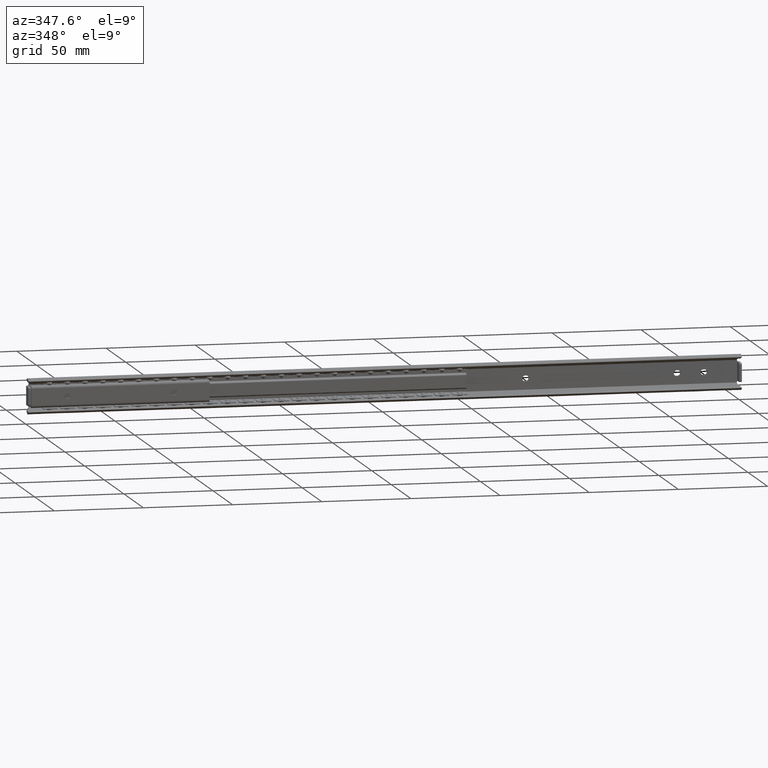
[diagram: clean part render]
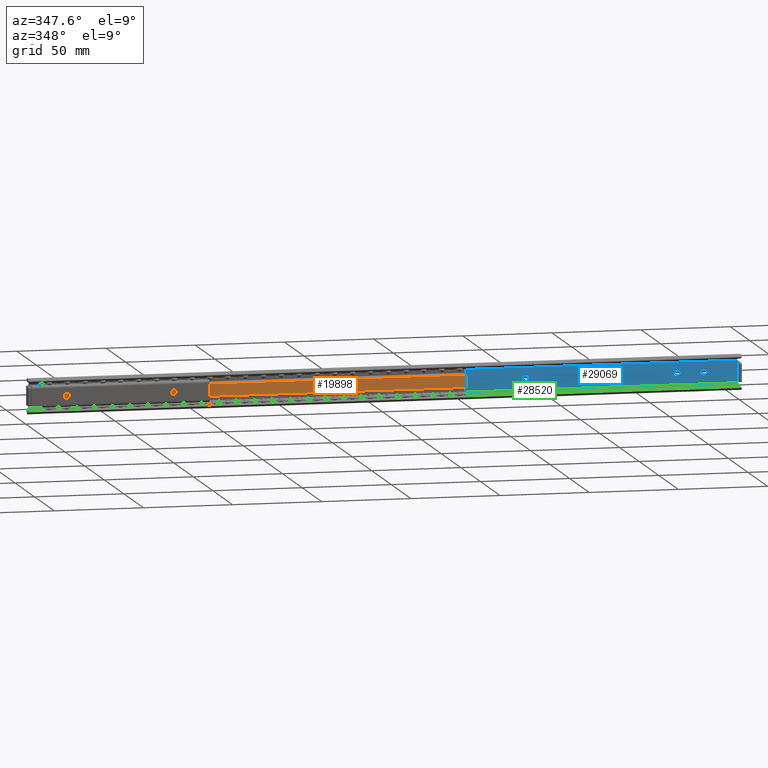
[diagram: same view with three faces highlighted in distinct colors, each labeled with its STEP entity id]
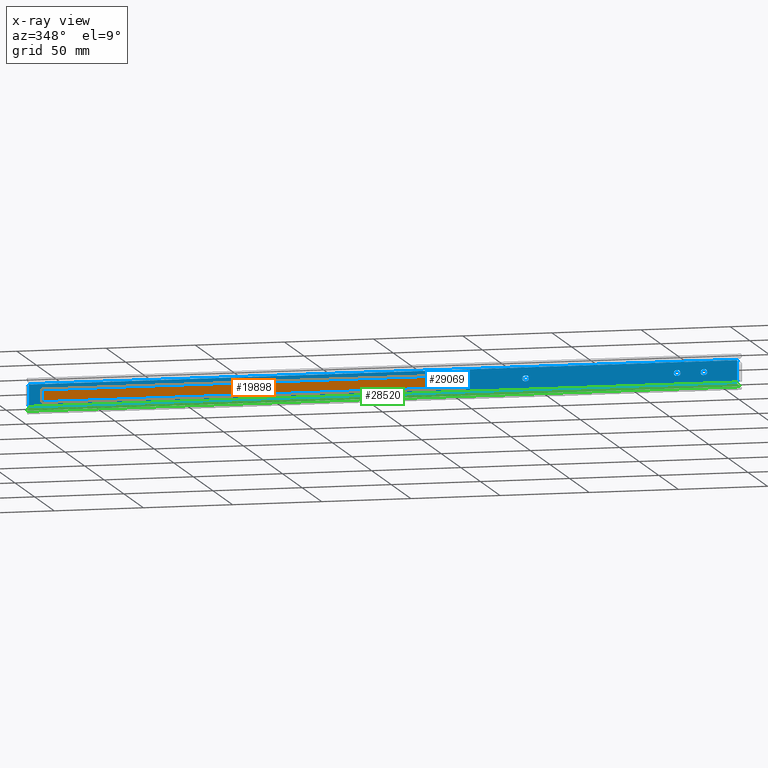
[diagram: x-ray of the same camera — body ghosted, the three highlighted faces saturated]
A machine part, auxiliary view with three faces highlighted in distinct colors.
The next image is the same camera in x-ray (body ghosted, the three faces saturated) — at least one of them is partly hidden behind the body in this view.
Their STEP definitions:

[orange] entity #19898 — the highlighted face is a freeform B-spline surface patch.
#19422=CARTESIAN_POINT('',(8.200000000000001,-4.500000000000000,-3.373923690811400));
#19423=VERTEX_POINT('',#19422);
#19437=CARTESIAN_POINT('',(8.200000000000001,-4.500000000000000,3.373923690811400));
#19438=VERTEX_POINT('',#19437);
#19439=CARTESIAN_POINT('',(8.200000000000001,-4.500000000000000,-3.373923690811400));
#19440=CARTESIAN_POINT('',(8.200000000000001,-4.500000000000000,3.373923690811400));
#19441=QUASI_UNIFORM_CURVE('',1,(#19439,#19440),.UNSPECIFIED.,.F.,.U.);
#19442=EDGE_CURVE('',#19423,#19438,#19441,.T.);
#19502=CARTESIAN_POINT('',(246.199999999999990,-4.500000000000000,3.373923690811400));
#19503=VERTEX_POINT('',#19502);
#19517=CARTESIAN_POINT('',(246.199999999999990,-4.500000000000000,-3.373923690811400));
#19518=VERTEX_POINT('',#19517);
#19519=CARTESIAN_POINT('',(246.199999999999990,-4.500000000000000,-3.373923690811400));
#19520=CARTESIAN_POINT('',(246.199999999999990,-4.500000000000000,3.373923690811400));
#19521=QUASI_UNIFORM_CURVE('',1,(#19519,#19520),.UNSPECIFIED.,.F.,.U.);
#19522=EDGE_CURVE('',#19518,#19503,#19521,.T.);
#19873=CARTESIAN_POINT('',(246.199999999999990,-4.500000000000000,3.373923690811400));
#19874=CARTESIAN_POINT('',(8.200000000000001,-4.500000000000000,3.373923690811400));
#19875=QUASI_UNIFORM_CURVE('',1,(#19873,#19874),.UNSPECIFIED.,.F.,.U.);
#19876=EDGE_CURVE('',#19503,#19438,#19875,.T.);
#19883=CARTESIAN_POINT('',(-3.688098688406660,-4.500000000000000,3.710978781132748));
#19884=CARTESIAN_POINT('',(-3.688098688406660,-4.500000000000000,-3.710978841463204));
#19885=CARTESIAN_POINT('',(258.088088048977620,-4.500000000000000,3.710978781132748));
#19886=CARTESIAN_POINT('',(258.088088048977620,-4.500000000000000,-3.710978841463205));
#19887=B_SPLINE_SURFACE_WITH_KNOTS('',1,1,((#19883,#19885),(#19884,#19886)),.UNSPECIFIED.,.F.,.F.,.U.,(2,2),(2,2),(0.0,7.421957622595952),(0.0,261.776186737384310),.UNSPECIFIED.);
#19888=ORIENTED_EDGE('',*,*,#19442,.F.);
#19889=CARTESIAN_POINT('',(246.199999999999990,-4.500000000000000,-3.373923690811400));
#19890=CARTESIAN_POINT('',(8.200000000000001,-4.500000000000000,-3.373923690811400));
#19891=QUASI_UNIFORM_CURVE('',1,(#19889,#19890),.UNSPECIFIED.,.F.,.U.);
#19892=EDGE_CURVE('',#19518,#19423,#19891,.T.);
#19893=ORIENTED_EDGE('',*,*,#19892,.F.);
#19894=ORIENTED_EDGE('',*,*,#19522,.T.);
#19895=ORIENTED_EDGE('',*,*,#19876,.T.);
#19896=EDGE_LOOP('',(#19888,#19893,#19894,#19895));
#19897=FACE_OUTER_BOUND('',#19896,.T.);
#19898=ADVANCED_FACE('',(#19897),#19887,.T.);

[blue] entity #29069 — the highlighted face is a freeform B-spline surface patch.
#25607=CARTESIAN_POINT('',(21.588815242142921,-1.399999999999956,-0.188854775778495));
#25608=VERTEX_POINT('',#25607);
#25614=CARTESIAN_POINT('',(20.0,-1.399999999999956,1.600000000000000));
#25615=VERTEX_POINT('',#25614);
#25616=CARTESIAN_POINT('',(21.588815242142918,-1.399999999999956,-0.188854775778495));
#25617=CARTESIAN_POINT('',(21.600000000000001,-1.399999999999956,-0.094758591774202));
#25618=CARTESIAN_POINT('',(21.600000000000001,-1.399999999999956,0.0));
#25619=CARTESIAN_POINT('',(21.600000000000005,-1.399999999999956,1.600000000000000));
#25620=CARTESIAN_POINT('',(20.0,-1.399999999999956,1.600000000000000));
#25628=(BOUNDED_CURVE()B_SPLINE_CURVE(2,(#25616,#25617,#25618,#25619,#25620),.UNSPECIFIED.,.F.,.U.)B_SPLINE_CURVE_WITH_KNOTS((3,2,3),(0.229562473445933,0.250000000000000,0.500000000000000),.UNSPECIFIED.)CURVE()GEOMETRIC_REPRESENTATION_ITEM()RATIONAL_B_SPLINE_CURVE((0.956026754051248,0.976055948251975,1.0,0.707106781186548,1.0))REPRESENTATION_ITEM(''));
#25629=EDGE_CURVE('',#25608,#25615,#25628,.T.);
#25631=CARTESIAN_POINT('',(18.402984322571509,-1.399999999999956,0.097677664016044));
#25632=VERTEX_POINT('',#25631);
#25633=CARTESIAN_POINT('',(20.0,-1.399999999999956,1.600000000000000));
#25634=CARTESIAN_POINT('',(18.494870294386637,-1.399999999999955,1.600000000000001));
#25635=CARTESIAN_POINT('',(18.402984322571516,-1.399999999999956,0.097677664016044));
#25643=(BOUNDED_CURVE()B_SPLINE_CURVE(2,(#25633,#25634,#25635),.UNSPECIFIED.,.F.,.U.)B_SPLINE_CURVE_WITH_KNOTS((3,3),(0.500000000000000,0.739332962077683),.UNSPECIFIED.)CURVE()GEOMETRIC_REPRESENTATION_ITEM()RATIONAL_B_SPLINE_CURVE((1.0,0.719603993475638,0.976072041321107))REPRESENTATION_ITEM(''));
#25644=EDGE_CURVE('',#25615,#25632,#25643,.T.);
#25718=CARTESIAN_POINT('',(20.0,-1.399999999999956,-1.600000000000000));
#25719=VERTEX_POINT('',#25718);
#25720=CARTESIAN_POINT('',(18.402984322571513,-1.399999999999956,0.097677664016044));
#25721=CARTESIAN_POINT('',(18.399999999999999,-1.399999999999956,0.048884422040147));
#25722=CARTESIAN_POINT('',(18.399999999999999,-1.399999999999956,0.0));
#25723=CARTESIAN_POINT('',(18.399999999999991,-1.399999999999956,-1.600000000000000));
#25724=CARTESIAN_POINT('',(20.0,-1.399999999999956,-1.600000000000000));
#25732=(BOUNDED_CURVE()B_SPLINE_CURVE(2,(#25720,#25721,#25722,#25723,#25724),.UNSPECIFIED.,.F.,.U.)B_SPLINE_CURVE_WITH_KNOTS((3,2,3),(0.739332962077684,0.750000000000000,1.0),.UNSPECIFIED.)CURVE()GEOMETRIC_REPRESENTATION_ITEM()RATIONAL_B_SPLINE_CURVE((0.976072041321108,0.987502787710910,1.0,0.707106781186548,1.0))REPRESENTATION_ITEM(''));
#25733=EDGE_CURVE('',#25632,#25719,#25732,.T.);
#25735=CARTESIAN_POINT('',(20.0,-1.399999999999956,-1.600000000000000));
#25736=CARTESIAN_POINT('',(21.421079240931888,-1.399999999999956,-1.599999999999999));
#25737=CARTESIAN_POINT('',(21.588815242142918,-1.399999999999956,-0.188854775778495));
#25745=(BOUNDED_CURVE()B_SPLINE_CURVE(2,(#25735,#25736,#25737),.UNSPECIFIED.,.F.,.U.)B_SPLINE_CURVE_WITH_KNOTS((3,3),(0.0,0.229562473445933),.UNSPECIFIED.)CURVE()GEOMETRIC_REPRESENTATION_ITEM()RATIONAL_B_SPLINE_CURVE((1.0,0.731050832934572,0.956026754051248))REPRESENTATION_ITEM(''));
#25746=EDGE_CURVE('',#25719,#25608,#25745,.T.);
#25770=CARTESIAN_POINT('',(34.700000000000003,-1.399999999999956,1.600000000000000));
#25771=VERTEX_POINT('',#25770);
#25772=CARTESIAN_POINT('',(34.700000000000003,-1.399999999999956,-1.600000000000080));
#25773=VERTEX_POINT('',#25772);
#25774=CARTESIAN_POINT('',(34.700000000000003,-1.399999999999956,1.600000000000000));
#25775=CARTESIAN_POINT('',(33.100000000000009,-1.399999999999956,1.600000000000000));
#25776=CARTESIAN_POINT('',(33.100000000000001,-1.399999999999956,0.0));
#25777=CARTESIAN_POINT('',(33.100000000000009,-1.399999999999956,-1.600000000000000));
#25778=CARTESIAN_POINT('',(34.700000000000003,-1.399999999999956,-1.600000000000080));
#25786=(BOUNDED_CURVE()B_SPLINE_CURVE(2,(#25774,#25775,#25776,#25777,#25778),.UNSPECIFIED.,.F.,.U.)B_SPLINE_CURVE_WITH_KNOTS((3,2,3),(0.0,0.500000000000000,1.0),.UNSPECIFIED.)CURVE()GEOMETRIC_REPRESENTATION_ITEM()RATIONAL_B_SPLINE_CURVE((1.0,0.707106781186548,1.0,0.707106781186548,1.0))REPRESENTATION_ITEM(''));
#25787=EDGE_CURVE('',#25771,#25773,#25786,.T.);
#25828=CARTESIAN_POINT('',(35.299999999999997,-1.399999999999956,-1.600000000000000));
#25829=VERTEX_POINT('',#25828);
#25841=CARTESIAN_POINT('',(35.299999999999997,-1.399999999999956,-1.600000000000000));
#25842=CARTESIAN_POINT('',(34.700000000000003,-1.399999999999956,-1.600000000000080));
#25843=QUASI_UNIFORM_CURVE('',1,(#25841,#25842),.UNSPECIFIED.,.F.,.U.);
#25844=EDGE_CURVE('',#25829,#25773,#25843,.T.);
#25867=CARTESIAN_POINT('',(35.299999999999997,-1.399999999999956,1.600000000000000));
#25868=VERTEX_POINT('',#25867);
#25869=CARTESIAN_POINT('',(35.299999999999997,-1.399999999999956,-1.600000000000000));
#25870=CARTESIAN_POINT('',(36.900000000000006,-1.399999999999956,-1.600000000000000));
#25871=CARTESIAN_POINT('',(36.899999999999999,-1.399999999999956,0.0));
#25872=CARTESIAN_POINT('',(36.900000000000006,-1.399999999999956,1.600000000000000));
#25873=CARTESIAN_POINT('',(35.299999999999997,-1.399999999999956,1.600000000000000));
#25881=(BOUNDED_CURVE()B_SPLINE_CURVE(2,(#25869,#25870,#25871,#25872,#25873),.UNSPECIFIED.,.F.,.U.)B_SPLINE_CURVE_WITH_KNOTS((3,2,3),(0.0,0.500000000000000,1.0),.UNSPECIFIED.)CURVE()GEOMETRIC_REPRESENTATION_ITEM()RATIONAL_B_SPLINE_CURVE((1.0,0.707106781186548,1.0,0.707106781186548,1.0))REPRESENTATION_ITEM(''));
#25882=EDGE_CURVE('',#25829,#25868,#25881,.T.);
#25922=CARTESIAN_POINT('',(34.700000000000003,-1.399999999999956,1.600000000000000));
#25923=CARTESIAN_POINT('',(35.299999999999997,-1.399999999999956,1.600000000000000));
#25924=QUASI_UNIFORM_CURVE('',1,(#25922,#25923),.UNSPECIFIED.,.F.,.U.);
#25925=EDGE_CURVE('',#25771,#25868,#25924,.T.);
#25935=CARTESIAN_POINT('',(119.700000000000000,-1.399999999999920,-1.600000000000080));
#25936=VERTEX_POINT('',#25935);
#25937=CARTESIAN_POINT('',(120.300000000000000,-1.399999999999956,-1.600000000000080));
#25938=VERTEX_POINT('',#25937);
#25939=CARTESIAN_POINT('',(119.700000000000000,-1.399999999999920,-1.600000000000080));
#25940=CARTESIAN_POINT('',(120.300000000000000,-1.399999999999956,-1.600000000000080));
#25941=QUASI_UNIFORM_CURVE('',1,(#25939,#25940),.UNSPECIFIED.,.F.,.U.);
#25942=EDGE_CURVE('',#25936,#25938,#25941,.T.);
#25984=CARTESIAN_POINT('',(119.700000000000000,-1.399999999999956,1.600000000000025));
#25985=VERTEX_POINT('',#25984);
#25986=CARTESIAN_POINT('',(119.700000000000000,-1.399999999999956,1.600000000000000));
#25987=CARTESIAN_POINT('',(118.099999999999980,-1.399999999999956,1.600000000000000));
#25988=CARTESIAN_POINT('',(118.099999999999990,-1.399999999999956,0.0));
#25989=CARTESIAN_POINT('',(118.099999999999980,-1.399999999999956,-1.600000000000000));
#25990=CARTESIAN_POINT('',(119.700000000000000,-1.399999999999956,-1.600000000000000));
#25998=(BOUNDED_CURVE()B_SPLINE_CURVE(2,(#25986,#25987,#25988,#25989,#25990),.UNSPECIFIED.,.F.,.U.)B_SPLINE_CURVE_WITH_KNOTS((3,2,3),(0.0,0.500000000000000,1.0),.UNSPECIFIED.)CURVE()GEOMETRIC_REPRESENTATION_ITEM()RATIONAL_B_SPLINE_CURVE((1.0,0.707106781186548,1.0,0.707106781186548,1.0))REPRESENTATION_ITEM(''));
#25999=EDGE_CURVE('',#25985,#25936,#25998,.T.);
#26032=CARTESIAN_POINT('',(120.300000000000000,-1.399999999999956,1.600000000000025));
#26033=VERTEX_POINT('',#26032);
#26034=CARTESIAN_POINT('',(120.300000000000000,-1.399999999999956,1.600000000000025));
#26035=CARTESIAN_POINT('',(119.700000000000000,-1.399999999999956,1.600000000000025));
#26036=QUASI_UNIFORM_CURVE('',1,(#26034,#26035),.UNSPECIFIED.,.F.,.U.);
#26037=EDGE_CURVE('',#26033,#25985,#26036,.T.);
#26073=CARTESIAN_POINT('',(120.300000000000000,-1.399999999999956,-1.600000000000000));
#26074=CARTESIAN_POINT('',(121.900000000000010,-1.399999999999956,-1.600000000000000));
#26075=CARTESIAN_POINT('',(121.900000000000010,-1.399999999999956,0.0));
#26076=CARTESIAN_POINT('',(121.900000000000010,-1.399999999999956,1.600000000000000));
#26077=CARTESIAN_POINT('',(120.300000000000000,-1.399999999999956,1.600000000000000));
#26085=(BOUNDED_CURVE()B_SPLINE_CURVE(2,(#26073,#26074,#26075,#26076,#26077),.UNSPECIFIED.,.F.,.U.)B_SPLINE_CURVE_WITH_KNOTS((3,2,3),(0.0,0.500000000000000,1.0),.UNSPECIFIED.)CURVE()GEOMETRIC_REPRESENTATION_ITEM()RATIONAL_B_SPLINE_CURVE((1.0,0.707106781186548,1.0,0.707106781186548,1.0))REPRESENTATION_ITEM(''));
#26086=EDGE_CURVE('',#25938,#26033,#26085,.T.);
#26113=CARTESIAN_POINT('',(379.699999999999990,-1.399999999999920,-1.600000000000000));
#26114=VERTEX_POINT('',#26113);
#26115=CARTESIAN_POINT('',(380.300000000000010,-1.399999999999956,-1.600000000000000));
#26116=VERTEX_POINT('',#26115);
#26117=CARTESIAN_POINT('',(379.699999999999990,-1.399999999999920,-1.600000000000000));
#26118=CARTESIAN_POINT('',(380.300000000000010,-1.399999999999956,-1.600000000000000));
#26119=QUASI_UNIFORM_CURVE('',1,(#26117,#26118),.UNSPECIFIED.,.F.,.U.);
#26120=EDGE_CURVE('',#26114,#26116,#26119,.T.);
#26162=CARTESIAN_POINT('',(379.699999999999990,-1.399999999999956,1.599999999999795));
#26163=VERTEX_POINT('',#26162);
#26164=CARTESIAN_POINT('',(379.699999999999990,-1.399999999999956,1.600000000000025));
#26165=CARTESIAN_POINT('',(378.100000000000020,-1.399999999999956,1.600000000000026));
#26166=CARTESIAN_POINT('',(378.099999999999910,-1.399999999999956,0.0));
#26167=CARTESIAN_POINT('',(378.100000000000020,-1.399999999999956,-1.600000000000026));
#26168=CARTESIAN_POINT('',(379.699999999999990,-1.399999999999956,-1.600000000000025));
#26176=(BOUNDED_CURVE()B_SPLINE_CURVE(2,(#26164,#26165,#26166,#26167,#26168),.UNSPECIFIED.,.F.,.U.)B_SPLINE_CURVE_WITH_KNOTS((3,2,3),(0.0,0.500000000000000,1.0),.UNSPECIFIED.)CURVE()GEOMETRIC_REPRESENTATION_ITEM()RATIONAL_B_SPLINE_CURVE((1.0,0.707106781186547,1.0,0.707106781186547,1.0))REPRESENTATION_ITEM(''));
#26177=EDGE_CURVE('',#26163,#26114,#26176,.T.);
#26210=CARTESIAN_POINT('',(380.300000000000010,-1.399999999999956,1.599999999999795));
#26211=VERTEX_POINT('',#26210);
#26212=CARTESIAN_POINT('',(380.300000000000010,-1.399999999999956,1.599999999999795));
#26213=CARTESIAN_POINT('',(379.699999999999990,-1.399999999999956,1.599999999999795));
#26214=QUASI_UNIFORM_CURVE('',1,(#26212,#26213),.UNSPECIFIED.,.F.,.U.);
#26215=EDGE_CURVE('',#26211,#26163,#26214,.T.);
#26251=CARTESIAN_POINT('',(380.300000000000010,-1.399999999999956,-1.600000000000025));
#26252=CARTESIAN_POINT('',(381.900000000000150,-1.399999999999956,-1.600000000000026));
#26253=CARTESIAN_POINT('',(381.900000000000090,-1.399999999999956,0.0));
#26254=CARTESIAN_POINT('',(381.900000000000150,-1.399999999999956,1.600000000000026));
#26255=CARTESIAN_POINT('',(380.300000000000010,-1.399999999999956,1.600000000000025));
#26263=(BOUNDED_CURVE()B_SPLINE_CURVE(2,(#26251,#26252,#26253,#26254,#26255),.UNSPECIFIED.,.F.,.U.)B_SPLINE_CURVE_WITH_KNOTS((3,2,3),(0.0,0.500000000000000,1.0),.UNSPECIFIED.)CURVE()GEOMETRIC_REPRESENTATION_ITEM()RATIONAL_B_SPLINE_CURVE((1.0,0.707106781186547,1.0,0.707106781186547,1.0))REPRESENTATION_ITEM(''));
#26264=EDGE_CURVE('',#26116,#26211,#26263,.T.);
#26291=CARTESIAN_POINT('',(364.700000000000100,-1.399999999999920,-1.600000000000000));
#26292=VERTEX_POINT('',#26291);
#26293=CARTESIAN_POINT('',(365.300000000000010,-1.399999999999956,-1.600000000000000));
#26294=VERTEX_POINT('',#26293);
#26295=CARTESIAN_POINT('',(364.700000000000100,-1.399999999999920,-1.600000000000000));
#26296=CARTESIAN_POINT('',(365.300000000000010,-1.399999999999956,-1.600000000000000));
#26297=QUASI_UNIFORM_CURVE('',1,(#26295,#26296),.UNSPECIFIED.,.F.,.U.);
#26298=EDGE_CURVE('',#26292,#26294,#26297,.T.);
#26340=CARTESIAN_POINT('',(364.700000000000100,-1.399999999999956,1.599999999999795));
#26341=VERTEX_POINT('',#26340);
#26342=CARTESIAN_POINT('',(364.700000000000100,-1.399999999999956,1.600000000000025));
#26343=CARTESIAN_POINT('',(363.100000000000080,-1.399999999999956,1.600000000000026));
#26344=CARTESIAN_POINT('',(363.100000000000020,-1.399999999999956,0.0));
#26345=CARTESIAN_POINT('',(363.100000000000080,-1.399999999999956,-1.600000000000026));
#26346=CARTESIAN_POINT('',(364.700000000000100,-1.399999999999956,-1.600000000000025));
#26354=(BOUNDED_CURVE()B_SPLINE_CURVE(2,(#26342,#26343,#26344,#26345,#26346),.UNSPECIFIED.,.F.,.U.)B_SPLINE_CURVE_WITH_KNOTS((3,2,3),(0.0,0.500000000000000,1.0),.UNSPECIFIED.)CURVE()GEOMETRIC_REPRESENTATION_ITEM()RATIONAL_B_SPLINE_CURVE((1.0,0.707106781186547,1.0,0.707106781186547,1.0))REPRESENTATION_ITEM(''));
#26355=EDGE_CURVE('',#26341,#26292,#26354,.T.);
#26388=CARTESIAN_POINT('',(365.300000000000010,-1.399999999999956,1.599999999999795));
#26389=VERTEX_POINT('',#26388);
#26390=CARTESIAN_POINT('',(365.300000000000010,-1.399999999999956,1.599999999999795));
#26391=CARTESIAN_POINT('',(364.700000000000100,-1.399999999999956,1.599999999999795));
#26392=QUASI_UNIFORM_CURVE('',1,(#26390,#26391),.UNSPECIFIED.,.F.,.U.);
#26393=EDGE_CURVE('',#26389,#26341,#26392,.T.);
#26429=CARTESIAN_POINT('',(365.300000000000010,-1.399999999999956,-1.600000000000025));
#26430=CARTESIAN_POINT('',(366.900000000000030,-1.399999999999956,-1.600000000000026));
#26431=CARTESIAN_POINT('',(366.899999999999980,-1.399999999999956,0.0));
#26432=CARTESIAN_POINT('',(366.900000000000030,-1.399999999999956,1.600000000000026));
#26433=CARTESIAN_POINT('',(365.300000000000010,-1.399999999999956,1.600000000000025));
#26441=(BOUNDED_CURVE()B_SPLINE_CURVE(2,(#26429,#26430,#26431,#26432,#26433),.UNSPECIFIED.,.F.,.U.)B_SPLINE_CURVE_WITH_KNOTS((3,2,3),(0.0,0.500000000000000,1.0),.UNSPECIFIED.)CURVE()GEOMETRIC_REPRESENTATION_ITEM()RATIONAL_B_SPLINE_CURVE((1.0,0.707106781186547,1.0,0.707106781186547,1.0))REPRESENTATION_ITEM(''));
#26442=EDGE_CURVE('',#26294,#26389,#26441,.T.);
#26469=CARTESIAN_POINT('',(279.699999999999990,-1.399999999999920,-1.600000000000000));
#26470=VERTEX_POINT('',#26469);
#26471=CARTESIAN_POINT('',(280.300000000000010,-1.399999999999956,-1.600000000000000));
#26472=VERTEX_POINT('',#26471);
#26473=CARTESIAN_POINT('',(279.699999999999990,-1.399999999999920,-1.600000000000000));
#26474=CARTESIAN_POINT('',(280.300000000000010,-1.399999999999956,-1.600000000000000));
#26475=QUASI_UNIFORM_CURVE('',1,(#26473,#26474),.UNSPECIFIED.,.F.,.U.);
#26476=EDGE_CURVE('',#26470,#26472,#26475,.T.);
#26518=CARTESIAN_POINT('',(279.699999999999990,-1.399999999999956,1.599999999999795));
#26519=VERTEX_POINT('',#26518);
#26520=CARTESIAN_POINT('',(279.699999999999990,-1.399999999999956,1.600000000000025));
#26521=CARTESIAN_POINT('',(278.099999999999910,-1.399999999999956,1.600000000000026));
#26522=CARTESIAN_POINT('',(278.100000000000020,-1.399999999999956,0.0));
#26523=CARTESIAN_POINT('',(278.099999999999910,-1.399999999999956,-1.600000000000026));
#26524=CARTESIAN_POINT('',(279.699999999999990,-1.399999999999956,-1.600000000000025));
#26532=(BOUNDED_CURVE()B_SPLINE_CURVE(2,(#26520,#26521,#26522,#26523,#26524),.UNSPECIFIED.,.F.,.U.)B_SPLINE_CURVE_WITH_KNOTS((3,2,3),(0.0,0.500000000000000,1.0),.UNSPECIFIED.)CURVE()GEOMETRIC_REPRESENTATION_ITEM()RATIONAL_B_SPLINE_CURVE((1.0,0.707106781186547,1.0,0.707106781186547,1.0))REPRESENTATION_ITEM(''));
#26533=EDGE_CURVE('',#26519,#26470,#26532,.T.);
#26566=CARTESIAN_POINT('',(280.300000000000010,-1.399999999999956,1.599999999999795));
#26567=VERTEX_POINT('',#26566);
#26568=CARTESIAN_POINT('',(280.300000000000010,-1.399999999999956,1.599999999999795));
#26569=CARTESIAN_POINT('',(279.699999999999990,-1.399999999999956,1.599999999999795));
#26570=QUASI_UNIFORM_CURVE('',1,(#26568,#26569),.UNSPECIFIED.,.F.,.U.);
#26571=EDGE_CURVE('',#26567,#26519,#26570,.T.);
#26607=CARTESIAN_POINT('',(280.300000000000010,-1.399999999999956,-1.600000000000025));
#26608=CARTESIAN_POINT('',(281.900000000000090,-1.399999999999956,-1.600000000000026));
#26609=CARTESIAN_POINT('',(281.899999999999980,-1.399999999999956,0.0));
#26610=CARTESIAN_POINT('',(281.900000000000090,-1.399999999999956,1.600000000000026));
#26611=CARTESIAN_POINT('',(280.300000000000010,-1.399999999999956,1.600000000000025));
#26619=(BOUNDED_CURVE()B_SPLINE_CURVE(2,(#26607,#26608,#26609,#26610,#26611),.UNSPECIFIED.,.F.,.U.)B_SPLINE_CURVE_WITH_KNOTS((3,2,3),(0.0,0.500000000000000,1.0),.UNSPECIFIED.)CURVE()GEOMETRIC_REPRESENTATION_ITEM()RATIONAL_B_SPLINE_CURVE((1.0,0.707106781186547,1.0,0.707106781186547,1.0))REPRESENTATION_ITEM(''));
#26620=EDGE_CURVE('',#26472,#26567,#26619,.T.);
#26664=CARTESIAN_POINT('',(398.600000000000020,-1.399999999999920,5.299999999999900));
#26665=VERTEX_POINT('',#26664);
#26671=CARTESIAN_POINT('',(398.600000000000020,-1.399999999999920,-5.300000000000000));
#26672=VERTEX_POINT('',#26671);
#26673=CARTESIAN_POINT('',(398.600000000000020,-1.399999999999920,5.299999999999900));
#26674=CARTESIAN_POINT('',(398.600000000000020,-1.399999999999920,-5.300000000000000));
#26675=QUASI_UNIFORM_CURVE('',1,(#26673,#26674),.UNSPECIFIED.,.F.,.U.);
#26676=EDGE_CURVE('',#26665,#26672,#26675,.T.);
#26841=CARTESIAN_POINT('',(399.400000242034480,-1.399999999999920,5.299999999999900));
#26842=VERTEX_POINT('',#26841);
#26848=CARTESIAN_POINT('',(398.600000000000020,-1.399999999999920,5.299999999999900));
#26849=CARTESIAN_POINT('',(399.400000242034480,-1.399999999999920,5.299999999999900));
#26850=QUASI_UNIFORM_CURVE('',1,(#26848,#26849),.UNSPECIFIED.,.F.,.U.);
#26851=EDGE_CURVE('',#26665,#26842,#26850,.T.);
#27062=CARTESIAN_POINT('',(398.424053704473520,-1.399999999999920,6.081989000000000));
#27063=VERTEX_POINT('',#27062);
#27077=CARTESIAN_POINT('',(398.424053704473120,-1.399999999999956,6.081988999999913));
#27078=CARTESIAN_POINT('',(398.598737887947440,-1.399999999999956,5.299999999999871));
#27079=CARTESIAN_POINT('',(399.400000242034480,-1.399999999999956,5.299999999999870));
#27087=(BOUNDED_CURVE()B_SPLINE_CURVE(2,(#27077,#27078,#27079),.UNSPECIFIED.,.F.,.U.)CURVE()GEOMETRIC_REPRESENTATION_ITEM()QUASI_UNIFORM_CURVE()RATIONAL_B_SPLINE_CURVE((1.0,0.780388115026564,1.0))REPRESENTATION_ITEM(''));
#27088=EDGE_CURVE('',#27063,#26842,#27087,.T.);
#27377=CARTESIAN_POINT('',(399.400000242034480,-1.399999999999956,-5.299999999999900));
#27378=VERTEX_POINT('',#27377);
#27406=CARTESIAN_POINT('',(398.600000000000020,-1.399999999999920,-5.300000000000000));
#27407=CARTESIAN_POINT('',(399.400000242034480,-1.399999999999956,-5.299999999999900));
#27408=QUASI_UNIFORM_CURVE('',1,(#27406,#27407),.UNSPECIFIED.,.F.,.U.);
#27409=EDGE_CURVE('',#26672,#27378,#27408,.T.);
#27461=CARTESIAN_POINT('',(398.424053704473520,-1.399999999999920,-6.081989000000000));
#27462=VERTEX_POINT('',#27461);
#27463=CARTESIAN_POINT('',(399.400000242034480,-1.399999999999956,-5.299999999999873));
#27464=CARTESIAN_POINT('',(398.598737887947490,-1.399999999999956,-5.299999999999873));
#27465=CARTESIAN_POINT('',(398.424053704473120,-1.399999999999956,-6.081988999999912));
#27473=(BOUNDED_CURVE()B_SPLINE_CURVE(2,(#27463,#27464,#27465),.UNSPECIFIED.,.F.,.U.)CURVE()GEOMETRIC_REPRESENTATION_ITEM()QUASI_UNIFORM_CURVE()RATIONAL_B_SPLINE_CURVE((1.0,0.780388115026564,1.0))REPRESENTATION_ITEM(''));
#27474=EDGE_CURVE('',#27378,#27462,#27473,.T.);
#27658=CARTESIAN_POINT('',(1.399999999999956,-1.399999999999920,-5.300000000000000));
#27659=VERTEX_POINT('',#27658);
#27665=CARTESIAN_POINT('',(1.399999999999956,-1.399999999999920,5.299999999999900));
#27666=VERTEX_POINT('',#27665);
#27667=CARTESIAN_POINT('',(1.399999999999956,-1.399999999999920,5.299999999999900));
#27668=CARTESIAN_POINT('',(1.399999999999956,-1.399999999999920,-5.300000000000000));
#27669=QUASI_UNIFORM_CURVE('',1,(#27667,#27668),.UNSPECIFIED.,.F.,.U.);
#27670=EDGE_CURVE('',#27666,#27659,#27669,.T.);
#27791=CARTESIAN_POINT('',(0.599999757965303,-1.399999999999956,5.299999999999870));
#27792=VERTEX_POINT('',#27791);
#27806=CARTESIAN_POINT('',(1.399999999999956,-1.399999999999920,5.299999999999900));
#27807=CARTESIAN_POINT('',(0.599999757965303,-1.399999999999956,5.299999999999870));
#27808=QUASI_UNIFORM_CURVE('',1,(#27806,#27807),.UNSPECIFIED.,.F.,.U.);
#27809=EDGE_CURVE('',#27666,#27792,#27808,.T.);
#28020=CARTESIAN_POINT('',(1.575946295526735,-1.399999999999920,6.081989000000000));
#28021=VERTEX_POINT('',#28020);
#28022=CARTESIAN_POINT('',(0.599999757965303,-1.399999999999956,5.299999999999870));
#28023=CARTESIAN_POINT('',(1.401262112052452,-1.399999999999957,5.299999999999871));
#28024=CARTESIAN_POINT('',(1.575946295526735,-1.399999999999920,6.081989000000000));
#28032=(BOUNDED_CURVE()B_SPLINE_CURVE(2,(#28022,#28023,#28024),.UNSPECIFIED.,.F.,.U.)CURVE()GEOMETRIC_REPRESENTATION_ITEM()QUASI_UNIFORM_CURVE()RATIONAL_B_SPLINE_CURVE((1.0,0.780388115026535,1.0))REPRESENTATION_ITEM(''));
#28033=EDGE_CURVE('',#27792,#28021,#28032,.T.);
#28221=CARTESIAN_POINT('',(0.599999757965304,-1.399999999999956,-5.299999999999900));
#28222=VERTEX_POINT('',#28221);
#28279=CARTESIAN_POINT('',(1.575946295526720,-1.399999999999956,-6.081989000000000));
#28280=VERTEX_POINT('',#28279);
#28294=CARTESIAN_POINT('',(1.575946295526719,-1.399999999999956,-6.081989000000000));
#28295=CARTESIAN_POINT('',(1.401262112052449,-1.399999999999956,-5.299999999999873));
#28296=CARTESIAN_POINT('',(0.599999757965304,-1.399999999999956,-5.299999999999900));
#28304=(BOUNDED_CURVE()B_SPLINE_CURVE(2,(#28294,#28295,#28296),.UNSPECIFIED.,.F.,.U.)CURVE()GEOMETRIC_REPRESENTATION_ITEM()QUASI_UNIFORM_CURVE()RATIONAL_B_SPLINE_CURVE((1.0,0.780388115026536,1.0))REPRESENTATION_ITEM(''));
#28305=EDGE_CURVE('',#28280,#28222,#28304,.T.);
#28322=CARTESIAN_POINT('',(1.399999999999956,-1.399999999999920,-5.300000000000000));
#28323=CARTESIAN_POINT('',(0.599999757965304,-1.399999999999956,-5.299999999999900));
#28324=QUASI_UNIFORM_CURVE('',1,(#28322,#28323),.UNSPECIFIED.,.F.,.U.);
#28325=EDGE_CURVE('',#27659,#28222,#28324,.T.);
#28464=CARTESIAN_POINT('',(398.424053704473520,-1.399999999999920,6.081989000000000));
#28465=CARTESIAN_POINT('',(1.575946295526735,-1.399999999999920,6.081989000000000));
#28466=QUASI_UNIFORM_CURVE('',1,(#28464,#28465),.UNSPECIFIED.,.F.,.U.);
#28467=EDGE_CURVE('',#27063,#28021,#28466,.T.);
#28487=CARTESIAN_POINT('',(398.424053704473520,-1.399999999999920,-6.081989000000000));
#28488=CARTESIAN_POINT('',(1.575946295526720,-1.399999999999956,-6.081989000000000));
#28489=QUASI_UNIFORM_CURVE('',1,(#28487,#28488),.UNSPECIFIED.,.F.,.U.);
#28490=EDGE_CURVE('',#27462,#28280,#28489,.T.);
#29014=CARTESIAN_POINT('',(-19.320058068468459,-1.399999999999920,6.689579519878855));
#29015=CARTESIAN_POINT('',(-19.320058068468459,-1.399999999999920,-6.689579084861102));
#29016=CARTESIAN_POINT('',(419.320040240718980,-1.399999999999920,6.689579519878855));
#29017=CARTESIAN_POINT('',(419.320040240718980,-1.399999999999920,-6.689579084861102));
#29018=B_SPLINE_SURFACE_WITH_KNOTS('',1,1,((#29014,#29016),(#29015,#29017)),.UNSPECIFIED.,.F.,.F.,.U.,(2,2),(2,2),(0.0,13.379158604739960),(0.0,438.640098309187520),.UNSPECIFIED.);
#29019=ORIENTED_EDGE('',*,*,#27409,.F.);
#29020=ORIENTED_EDGE('',*,*,#26676,.F.);
#29021=ORIENTED_EDGE('',*,*,#26851,.T.);
#29022=ORIENTED_EDGE('',*,*,#27088,.F.);
#29023=ORIENTED_EDGE('',*,*,#28467,.T.);
#29024=ORIENTED_EDGE('',*,*,#28033,.F.);
#29025=ORIENTED_EDGE('',*,*,#27809,.F.);
#29026=ORIENTED_EDGE('',*,*,#27670,.T.);
#29027=ORIENTED_EDGE('',*,*,#28325,.T.);
#29028=ORIENTED_EDGE('',*,*,#28305,.F.);
#29029=ORIENTED_EDGE('',*,*,#28490,.F.);
#29030=ORIENTED_EDGE('',*,*,#27474,.F.);
#29031=EDGE_LOOP('',(#29019,#29020,#29021,#29022,#29023,#29024,#29025,#29026,#29027,#29028,#29029,#29030));
#29032=FACE_OUTER_BOUND('',#29031,.T.);
#29033=ORIENTED_EDGE('',*,*,#26620,.F.);
#29034=ORIENTED_EDGE('',*,*,#26476,.F.);
#29035=ORIENTED_EDGE('',*,*,#26533,.F.);
#29036=ORIENTED_EDGE('',*,*,#26571,.F.);
#29037=EDGE_LOOP('',(#29033,#29034,#29035,#29036));
#29038=FACE_BOUND('',#29037,.T.);
#29039=ORIENTED_EDGE('',*,*,#26442,.F.);
#29040=ORIENTED_EDGE('',*,*,#26298,.F.);
#29041=ORIENTED_EDGE('',*,*,#26355,.F.);
#29042=ORIENTED_EDGE('',*,*,#26393,.F.);
#29043=EDGE_LOOP('',(#29039,#29040,#29041,#29042));
#29044=FACE_BOUND('',#29043,.T.);
#29045=ORIENTED_EDGE('',*,*,#26264,.F.);
#29046=ORIENTED_EDGE('',*,*,#26120,.F.);
#29047=ORIENTED_EDGE('',*,*,#26177,.F.);
#29048=ORIENTED_EDGE('',*,*,#26215,.F.);
#29049=EDGE_LOOP('',(#29045,#29046,#29047,#29048));
#29050=FACE_BOUND('',#29049,.T.);
#29051=ORIENTED_EDGE('',*,*,#26086,.F.);
#29052=ORIENTED_EDGE('',*,*,#25942,.F.);
#29053=ORIENTED_EDGE('',*,*,#25999,.F.);
#29054=ORIENTED_EDGE('',*,*,#26037,.F.);
#29055=EDGE_LOOP('',(#29051,#29052,#29053,#29054));
#29056=FACE_BOUND('',#29055,.T.);
#29057=ORIENTED_EDGE('',*,*,#25787,.F.);
#29058=ORIENTED_EDGE('',*,*,#25925,.T.);
#29059=ORIENTED_EDGE('',*,*,#25882,.F.);
#29060=ORIENTED_EDGE('',*,*,#25844,.T.);
#29061=EDGE_LOOP('',(#29057,#29058,#29059,#29060));
#29062=FACE_BOUND('',#29061,.T.);
#29063=ORIENTED_EDGE('',*,*,#25644,.F.);
#29064=ORIENTED_EDGE('',*,*,#25629,.F.);
#29065=ORIENTED_EDGE('',*,*,#25746,.F.);
#29066=ORIENTED_EDGE('',*,*,#25733,.F.);
#29067=EDGE_LOOP('',(#29063,#29064,#29065,#29066));
#29068=FACE_BOUND('',#29067,.T.);
#29069=ADVANCED_FACE('',(#29032,#29038,#29044,#29050,#29056,#29062,#29068),#29018,.T.);

[green] entity #28520 — the highlighted face is a freeform B-spline surface patch.
#27229=CARTESIAN_POINT('',(398.692893000000030,-2.161378739668665,-7.007107000000100));
#27230=VERTEX_POINT('',#27229);
#27236=CARTESIAN_POINT('',(399.707107000000010,-3.253435910361090,-8.021319999999999));
#27237=VERTEX_POINT('',#27236);
#27238=CARTESIAN_POINT('',(399.707107000000010,-3.253435910361090,-8.021319999999999));
#27239=CARTESIAN_POINT('',(398.692893000000030,-2.161378739668665,-7.007107000000100));
#27240=QUASI_UNIFORM_CURVE('',1,(#27238,#27239),.UNSPECIFIED.,.F.,.U.);
#27241=EDGE_CURVE('',#27237,#27230,#27240,.T.);
#27273=CARTESIAN_POINT('',(399.833379019755510,-3.419692415967285,-8.175724730600940));
#27274=VERTEX_POINT('',#27273);
#27275=CARTESIAN_POINT('',(399.833379019755510,-3.419692415967285,-8.175724730600940));
#27276=CARTESIAN_POINT('',(399.777981085427260,-3.329750332501840,-8.092194566918062));
#27277=CARTESIAN_POINT('',(399.707107000000010,-3.253435910361090,-8.021319999999999));
#27285=(BOUNDED_CURVE()B_SPLINE_CURVE(2,(#27275,#27276,#27277),.UNSPECIFIED.,.F.,.U.)CURVE()GEOMETRIC_REPRESENTATION_ITEM()QUASI_UNIFORM_CURVE()RATIONAL_B_SPLINE_CURVE((1.0,0.995014394697250,1.0))REPRESENTATION_ITEM(''));
#27286=EDGE_CURVE('',#27274,#27237,#27285,.T.);
#27476=CARTESIAN_POINT('',(398.411066295917010,-1.559745300733950,-6.448358676184340));
#27477=VERTEX_POINT('',#27476);
#27491=CARTESIAN_POINT('',(398.411066295917010,-1.559745300733950,-6.448358676184340));
#27492=CARTESIAN_POINT('',(398.459941880378210,-1.910547672658740,-6.774155707895453));
#27493=CARTESIAN_POINT('',(398.692893000000030,-2.161378739668382,-7.007107000000091));
#27501=(BOUNDED_CURVE()B_SPLINE_CURVE(2,(#27491,#27492,#27493),.UNSPECIFIED.,.F.,.U.)CURVE()GEOMETRIC_REPRESENTATION_ITEM()QUASI_UNIFORM_CURVE()RATIONAL_B_SPLINE_CURVE((1.0,0.949786060121842,1.0))REPRESENTATION_ITEM(''));
#27502=EDGE_CURVE('',#27477,#27230,#27501,.T.);
#28181=CARTESIAN_POINT('',(0.292892999999993,-3.253435910361090,-8.021319999999999));
#28182=VERTEX_POINT('',#28181);
#28188=CARTESIAN_POINT('',(1.307106999999946,-2.161378739668320,-7.007107000000000));
#28189=VERTEX_POINT('',#28188);
#28190=CARTESIAN_POINT('',(1.307106999999946,-2.161378739668320,-7.007107000000000));
#28191=CARTESIAN_POINT('',(0.292892999999993,-3.253435910361090,-8.021319999999999));
#28192=QUASI_UNIFORM_CURVE('',1,(#28190,#28191),.UNSPECIFIED.,.F.,.U.);
#28193=EDGE_CURVE('',#28189,#28182,#28192,.T.);
#28264=CARTESIAN_POINT('',(1.588933704083245,-1.559745300733950,-6.448358676184340));
#28265=VERTEX_POINT('',#28264);
#28266=CARTESIAN_POINT('',(1.307106999999946,-2.161378739668320,-7.007107000000000));
#28267=CARTESIAN_POINT('',(1.540057991290967,-1.910547810839261,-6.774155836226173));
#28268=CARTESIAN_POINT('',(1.588933704083245,-1.559745300733950,-6.448358676184340));
#28276=(BOUNDED_CURVE()B_SPLINE_CURVE(2,(#28266,#28267,#28268),.UNSPECIFIED.,.F.,.U.)CURVE()GEOMETRIC_REPRESENTATION_ITEM()QUASI_UNIFORM_CURVE()RATIONAL_B_SPLINE_CURVE((1.0,0.949786111349295,1.0))REPRESENTATION_ITEM(''));
#28277=EDGE_CURVE('',#28189,#28265,#28276,.T.);
#28378=CARTESIAN_POINT('',(0.166620980244670,-3.419692415967285,-8.175724730600940));
#28379=VERTEX_POINT('',#28378);
#28413=CARTESIAN_POINT('',(0.292892999999993,-3.253435910361090,-8.021319999999999));
#28414=CARTESIAN_POINT('',(0.222019087324127,-3.329750052030010,-8.092194306438865));
#28415=CARTESIAN_POINT('',(0.166620980244670,-3.419692415967285,-8.175724730600940));
#28423=(BOUNDED_CURVE()B_SPLINE_CURVE(2,(#28413,#28414,#28415),.UNSPECIFIED.,.F.,.U.)CURVE()GEOMETRIC_REPRESENTATION_ITEM()QUASI_UNIFORM_CURVE()RATIONAL_B_SPLINE_CURVE((1.0,0.995014363835470,1.0))REPRESENTATION_ITEM(''));
#28424=EDGE_CURVE('',#28182,#28379,#28423,.T.);
#28493=CARTESIAN_POINT('',(398.411066295917010,-1.559745300733950,-6.448358676184340));
#28494=CARTESIAN_POINT('',(1.588933704083245,-1.559745300733950,-6.448358676184340));
#28495=QUASI_UNIFORM_CURVE('',1,(#28493,#28494),.UNSPECIFIED.,.F.,.U.);
#28496=EDGE_CURVE('',#27477,#28265,#28495,.T.);
#28501=CARTESIAN_POINT('',(-19.796731381306781,-1.466840570024961,-6.362076996487044));
#28502=CARTESIAN_POINT('',(-19.796731381306781,-3.512596635383844,-8.262007194280020));
#28503=CARTESIAN_POINT('',(419.796713514810620,-1.466840570024961,-6.362076996487044));
#28504=CARTESIAN_POINT('',(419.796713514810620,-3.512596635383844,-8.262007194280020));
#28505=B_SPLINE_SURFACE_WITH_KNOTS('',1,1,((#28501,#28503),(#28502,#28504)),.UNSPECIFIED.,.F.,.F.,.U.,(2,2),(2,2),(0.0,2.791926330589387),(0.0,439.593444896117380),.UNSPECIFIED.);
#28506=ORIENTED_EDGE('',*,*,#27502,.F.);
#28507=ORIENTED_EDGE('',*,*,#28496,.T.);
#28508=ORIENTED_EDGE('',*,*,#28277,.F.);
#28509=ORIENTED_EDGE('',*,*,#28193,.T.);
#28510=ORIENTED_EDGE('',*,*,#28424,.T.);
#28511=CARTESIAN_POINT('',(399.833379019755510,-3.419692415967285,-8.175724730600940));
#28512=CARTESIAN_POINT('',(0.166620980244670,-3.419692415967285,-8.175724730600940));
#28513=QUASI_UNIFORM_CURVE('',1,(#28511,#28512),.UNSPECIFIED.,.F.,.U.);
#28514=EDGE_CURVE('',#27274,#28379,#28513,.T.);
#28515=ORIENTED_EDGE('',*,*,#28514,.F.);
#28516=ORIENTED_EDGE('',*,*,#27286,.T.);
#28517=ORIENTED_EDGE('',*,*,#27241,.T.);
#28518=EDGE_LOOP('',(#28506,#28507,#28508,#28509,#28510,#28515,#28516,#28517));
#28519=FACE_OUTER_BOUND('',#28518,.T.);
#28520=ADVANCED_FACE('',(#28519),#28505,.T.);